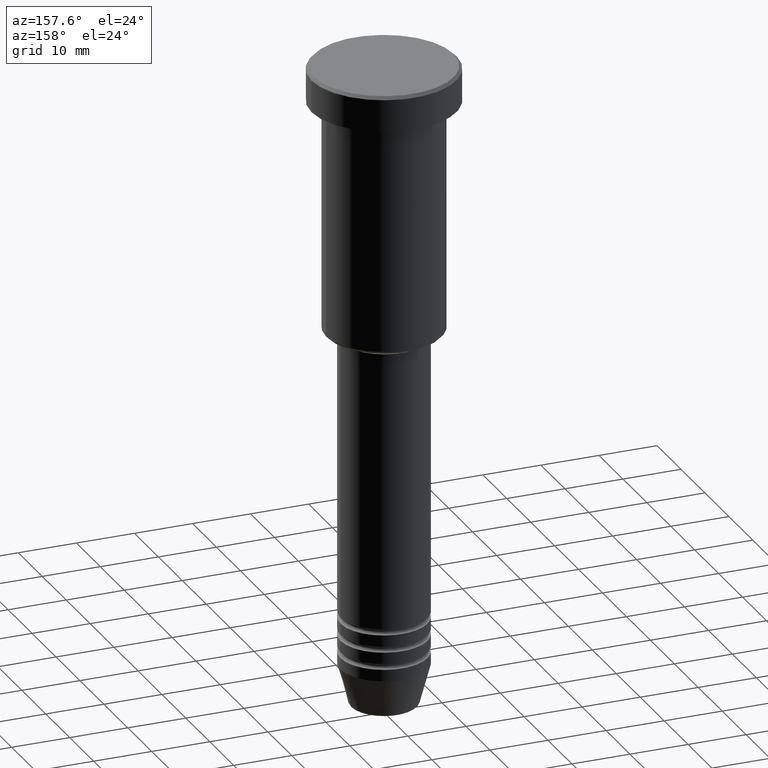
[diagram: clean part render]
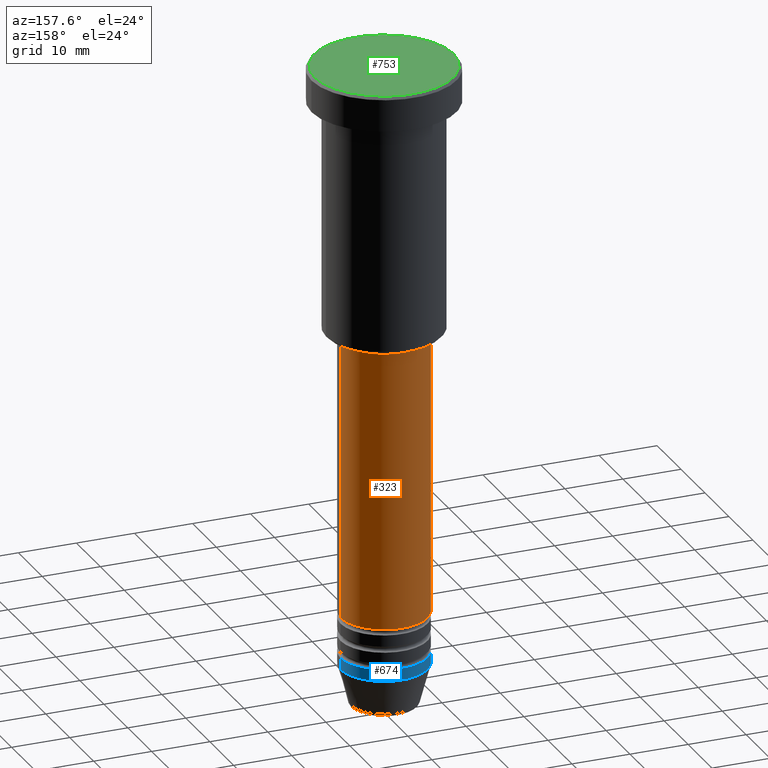
[diagram: same view with three faces highlighted in distinct colors, each labeled with its STEP entity id]
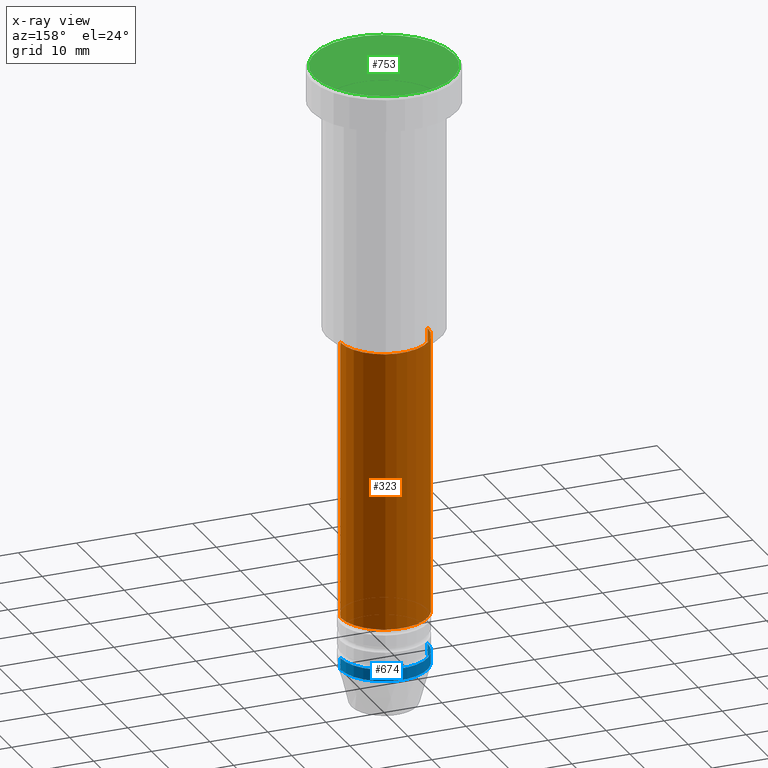
[diagram: x-ray of the same camera — body ghosted, the three highlighted faces saturated]
A machine part, auxiliary view with three faces highlighted in distinct colors.
The next image is the same camera in x-ray (body ghosted, the three faces saturated) — at least one of them is partly hidden behind the body in this view.
Their STEP definitions:

[orange] entity #323 — the highlighted cylindrical surface (partial cylindrical patch) has radius 7.5 mm, axis along (-0, -0, 1).
#31 = DIRECTION ( 'NONE',  ( 1.000000000000000000, 0.000000000000000000, 0.000000000000000000 ) ) ;
#33 = ORIENTED_EDGE ( 'NONE', *, *, #174, .T. ) ;
#46 = VECTOR ( 'NONE', #1130, 1000.000000000000000 ) ;
#133 = LINE ( 'NONE', #394, #46 ) ;
#139 = ORIENTED_EDGE ( 'NONE', *, *, #633, .F. ) ;
#148 = LINE ( 'NONE', #320, #487 ) ;
#173 = CARTESIAN_POINT ( 'NONE',  ( 0.000000000000000000, 0.000000000000000000, 0.000000000000000000 ) ) ;
#174 = EDGE_CURVE ( 'NONE', #418, #1138, #148, .T. ) ;
#190 = DIRECTION ( 'NONE',  ( -0.000000000000000000, -0.000000000000000000, 1.000000000000000000 ) ) ;
#208 = AXIS2_PLACEMENT_3D ( 'NONE', #1030, #190, #1077 ) ;
#320 = CARTESIAN_POINT ( 'NONE',  ( -7.500000000000000000, 9.184850993605147944E-16, 0.000000000000000000 ) ) ;
#323 = ADVANCED_FACE ( 'NONE', ( #515 ), #987, .T. ) ;
#394 = CARTESIAN_POINT ( 'NONE',  ( 7.500000000000000000, 0.000000000000000000, 0.000000000000000000 ) ) ;
#418 = VERTEX_POINT ( 'NONE', #1074 ) ;
#419 = CIRCLE ( 'NONE', #897, 7.500000000000000000 ) ;
#487 = VECTOR ( 'NONE', #758, 1000.000000000000000 ) ;
#515 = FACE_OUTER_BOUND ( 'NONE', #538, .T. ) ;
#522 = VERTEX_POINT ( 'NONE', #658 ) ;
#538 = EDGE_LOOP ( 'NONE', ( #1145, #33, #139, #645 ) ) ;
#633 = EDGE_CURVE ( 'NONE', #522, #1138, #787, .T. ) ;
#645 = ORIENTED_EDGE ( 'NONE', *, *, #1133, .F. ) ;
#658 = CARTESIAN_POINT ( 'NONE',  ( 7.500000000000000000, 0.000000000000000000, -47.00000000000000711 ) ) ;
#679 = VERTEX_POINT ( 'NONE', #884 ) ;
#758 = DIRECTION ( 'NONE',  ( -0.000000000000000000, -0.000000000000000000, 1.000000000000000000 ) ) ;
#787 = CIRCLE ( 'NONE', #208, 7.500000000000000000 ) ;
#788 = AXIS2_PLACEMENT_3D ( 'NONE', #173, #991, #978 ) ;
#884 = CARTESIAN_POINT ( 'NONE',  ( 7.500000000000000000, 0.000000000000000000, -94.99999999999997158 ) ) ;
#897 = AXIS2_PLACEMENT_3D ( 'NONE', #1027, #1119, #31 ) ;
#978 = DIRECTION ( 'NONE',  ( 1.000000000000000000, 0.000000000000000000, 0.000000000000000000 ) ) ;
#987 = CYLINDRICAL_SURFACE ( 'NONE', #788, 7.500000000000000000 ) ;
#991 = DIRECTION ( 'NONE',  ( -0.000000000000000000, -0.000000000000000000, 1.000000000000000000 ) ) ;
#1027 = CARTESIAN_POINT ( 'NONE',  ( 0.000000000000000000, 0.000000000000000000, -94.99999999999997158 ) ) ;
#1030 = CARTESIAN_POINT ( 'NONE',  ( 0.000000000000000000, 0.000000000000000000, -47.00000000000000711 ) ) ;
#1041 = CARTESIAN_POINT ( 'NONE',  ( -7.500000000000000000, 9.184850993605147944E-16, -47.00000000000000711 ) ) ;
#1060 = EDGE_CURVE ( 'NONE', #679, #418, #419, .T. ) ;
#1074 = CARTESIAN_POINT ( 'NONE',  ( -7.500000000000000000, 9.184850993605147944E-16, -94.99999999999997158 ) ) ;
#1077 = DIRECTION ( 'NONE',  ( 1.000000000000000000, 0.000000000000000000, 0.000000000000000000 ) ) ;
#1119 = DIRECTION ( 'NONE',  ( -0.000000000000000000, -0.000000000000000000, 1.000000000000000000 ) ) ;
#1130 = DIRECTION ( 'NONE',  ( -0.000000000000000000, -0.000000000000000000, 1.000000000000000000 ) ) ;
#1133 = EDGE_CURVE ( 'NONE', #679, #522, #133, .T. ) ;
#1138 = VERTEX_POINT ( 'NONE', #1041 ) ;
#1145 = ORIENTED_EDGE ( 'NONE', *, *, #1060, .T. ) ;

[blue] entity #674 — the highlighted cylindrical surface (partial cylindrical patch) has radius 7.5 mm, axis along (-0, -0, 1).
#25 = CARTESIAN_POINT ( 'NONE',  ( 7.500000000000000000, 0.000000000000000000, -104.0000000000000142 ) ) ;
#38 = DIRECTION ( 'NONE',  ( -0.000000000000000000, -0.000000000000000000, 1.000000000000000000 ) ) ;
#39 = VECTOR ( 'NONE', #1049, 1000.000000000000000 ) ;
#44 = EDGE_CURVE ( 'NONE', #1038, #972, #889, .T. ) ;
#193 = EDGE_CURVE ( 'NONE', #972, #499, #677, .T. ) ;
#302 = CARTESIAN_POINT ( 'NONE',  ( 7.500000000000000000, 0.000000000000000000, -102.0000000000000142 ) ) ;
#328 = AXIS2_PLACEMENT_3D ( 'NONE', #953, #38, #495 ) ;
#338 = DIRECTION ( 'NONE',  ( -0.000000000000000000, -0.000000000000000000, 1.000000000000000000 ) ) ;
#405 = EDGE_CURVE ( 'NONE', #1038, #511, #808, .T. ) ;
#430 = DIRECTION ( 'NONE',  ( -0.000000000000000000, -0.000000000000000000, 1.000000000000000000 ) ) ;
#445 = VECTOR ( 'NONE', #338, 1000.000000000000000 ) ;
#458 = DIRECTION ( 'NONE',  ( -0.000000000000000000, -0.000000000000000000, 1.000000000000000000 ) ) ;
#463 = CARTESIAN_POINT ( 'NONE',  ( 0.000000000000000000, 0.000000000000000000, -104.0000000000000142 ) ) ;
#495 = DIRECTION ( 'NONE',  ( 1.000000000000000000, 0.000000000000000000, 0.000000000000000000 ) ) ;
#499 = VERTEX_POINT ( 'NONE', #913 ) ;
#511 = VERTEX_POINT ( 'NONE', #302 ) ;
#570 = CIRCLE ( 'NONE', #328, 7.500000000000000000 ) ;
#637 = AXIS2_PLACEMENT_3D ( 'NONE', #1147, #430, #770 ) ;
#674 = ADVANCED_FACE ( 'NONE', ( #873 ), #789, .T. ) ;
#677 = LINE ( 'NONE', #964, #39 ) ;
#699 = ORIENTED_EDGE ( 'NONE', *, *, #193, .T. ) ;
#770 = DIRECTION ( 'NONE',  ( 1.000000000000000000, 0.000000000000000000, 0.000000000000000000 ) ) ;
#789 = CYLINDRICAL_SURFACE ( 'NONE', #637, 7.500000000000000000 ) ;
#792 = ORIENTED_EDGE ( 'NONE', *, *, #44, .T. ) ;
#808 = LINE ( 'NONE', #1078, #445 ) ;
#845 = ORIENTED_EDGE ( 'NONE', *, *, #1126, .F. ) ;
#873 = FACE_OUTER_BOUND ( 'NONE', #988, .T. ) ;
#889 = CIRCLE ( 'NONE', #1178, 7.500000000000000000 ) ;
#913 = CARTESIAN_POINT ( 'NONE',  ( -7.500000000000000000, 9.184850993605147944E-16, -102.0000000000000142 ) ) ;
#933 = CARTESIAN_POINT ( 'NONE',  ( -7.500000000000000000, 9.184850993605147944E-16, -104.0000000000000142 ) ) ;
#953 = CARTESIAN_POINT ( 'NONE',  ( 0.000000000000000000, 0.000000000000000000, -102.0000000000000142 ) ) ;
#956 = ORIENTED_EDGE ( 'NONE', *, *, #405, .F. ) ;
#964 = CARTESIAN_POINT ( 'NONE',  ( -7.500000000000000000, 9.184850993605147944E-16, 0.000000000000000000 ) ) ;
#972 = VERTEX_POINT ( 'NONE', #933 ) ;
#988 = EDGE_LOOP ( 'NONE', ( #792, #699, #845, #956 ) ) ;
#1038 = VERTEX_POINT ( 'NONE', #25 ) ;
#1049 = DIRECTION ( 'NONE',  ( -0.000000000000000000, -0.000000000000000000, 1.000000000000000000 ) ) ;
#1078 = CARTESIAN_POINT ( 'NONE',  ( 7.500000000000000000, 0.000000000000000000, 0.000000000000000000 ) ) ;
#1110 = DIRECTION ( 'NONE',  ( 1.000000000000000000, 0.000000000000000000, 0.000000000000000000 ) ) ;
#1126 = EDGE_CURVE ( 'NONE', #511, #499, #570, .T. ) ;
#1147 = CARTESIAN_POINT ( 'NONE',  ( 0.000000000000000000, 0.000000000000000000, 0.000000000000000000 ) ) ;
#1178 = AXIS2_PLACEMENT_3D ( 'NONE', #463, #458, #1110 ) ;

[green] entity #753 — the highlighted planar face has unit normal (0, -0, 1).
#107 = EDGE_CURVE ( 'NONE', #755, #517, #853, .T. ) ;
#198 = DIRECTION ( 'NONE',  ( -0.000000000000000000, -0.000000000000000000, 1.000000000000000000 ) ) ;
#215 = ORIENTED_EDGE ( 'NONE', *, *, #107, .T. ) ;
#243 = DIRECTION ( 'NONE',  ( 1.000000000000000000, 0.000000000000000000, 0.000000000000000000 ) ) ;
#251 = FACE_OUTER_BOUND ( 'NONE', #1075, .T. ) ;
#259 = CARTESIAN_POINT ( 'NONE',  ( 12.00000000000001066, 1.500192328955508326E-15, 0.000000000000000000 ) ) ;
#268 = CARTESIAN_POINT ( 'NONE',  ( 0.000000000000000000, 0.000000000000000000, 0.000000000000000000 ) ) ;
#279 = CIRCLE ( 'NONE', #428, 12.00000000000001066 ) ;
#283 = CARTESIAN_POINT ( 'NONE',  ( -12.00000000000001066, 0.000000000000000000, 0.000000000000000000 ) ) ;
#330 = PLANE ( 'NONE',  #694 ) ;
#348 = DIRECTION ( 'NONE',  ( 0.000000000000000000, -0.000000000000000000, 1.000000000000000000 ) ) ;
#352 = DIRECTION ( 'NONE',  ( -0.000000000000000000, -0.000000000000000000, 1.000000000000000000 ) ) ;
#356 = EDGE_CURVE ( 'NONE', #517, #755, #279, .T. ) ;
#428 = AXIS2_PLACEMENT_3D ( 'NONE', #268, #352, #880 ) ;
#517 = VERTEX_POINT ( 'NONE', #283 ) ;
#644 = CARTESIAN_POINT ( 'NONE',  ( 0.000000000000000000, 0.000000000000000000, 0.000000000000000000 ) ) ;
#689 = CARTESIAN_POINT ( 'NONE',  ( 0.000000000000000000, 0.000000000000000000, 0.000000000000000000 ) ) ;
#694 = AXIS2_PLACEMENT_3D ( 'NONE', #689, #348, #243 ) ;
#753 = ADVANCED_FACE ( 'NONE', ( #251 ), #330, .T. ) ;
#755 = VERTEX_POINT ( 'NONE', #259 ) ;
#829 = DIRECTION ( 'NONE',  ( 1.000000000000000000, 0.000000000000000000, 0.000000000000000000 ) ) ;
#853 = CIRCLE ( 'NONE', #969, 12.00000000000001066 ) ;
#880 = DIRECTION ( 'NONE',  ( 1.000000000000000000, 0.000000000000000000, 0.000000000000000000 ) ) ;
#949 = ORIENTED_EDGE ( 'NONE', *, *, #356, .T. ) ;
#969 = AXIS2_PLACEMENT_3D ( 'NONE', #644, #198, #829 ) ;
#1075 = EDGE_LOOP ( 'NONE', ( #949, #215 ) ) ;